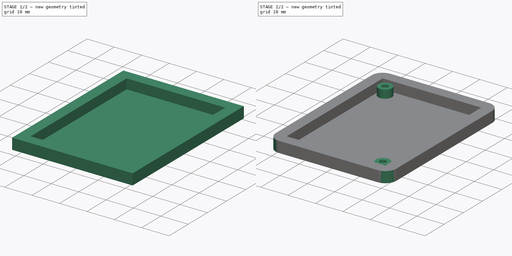
[diagram: build sequence overview — one tinted view per stage of 2, left to right]
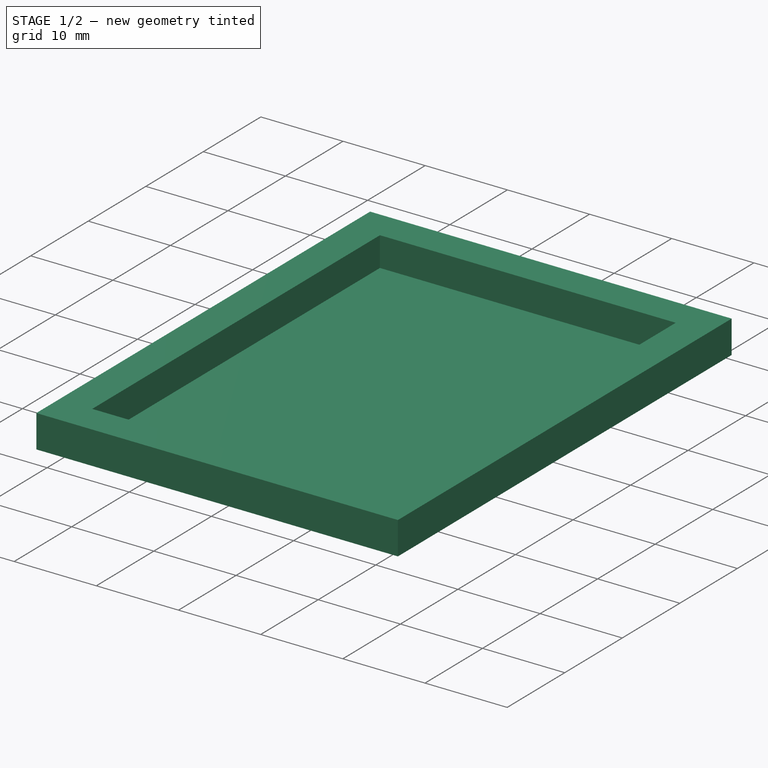
[diagram: stage 1 of 2 — iso view after this stage's code; geometry added in this stage tinted green]
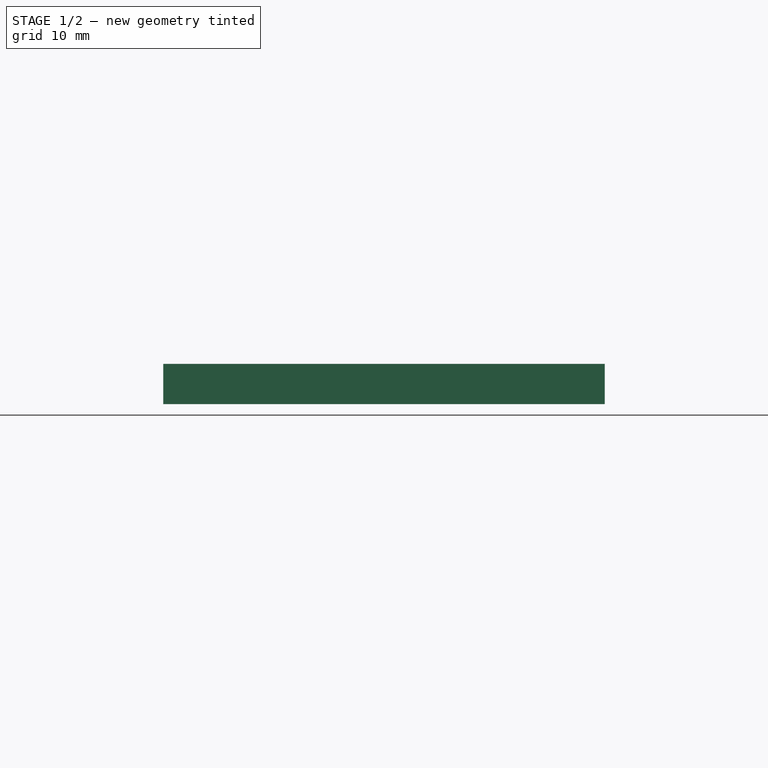
[diagram: stage 1 of 2 — front view after this stage's code; geometry added in this stage tinted green]
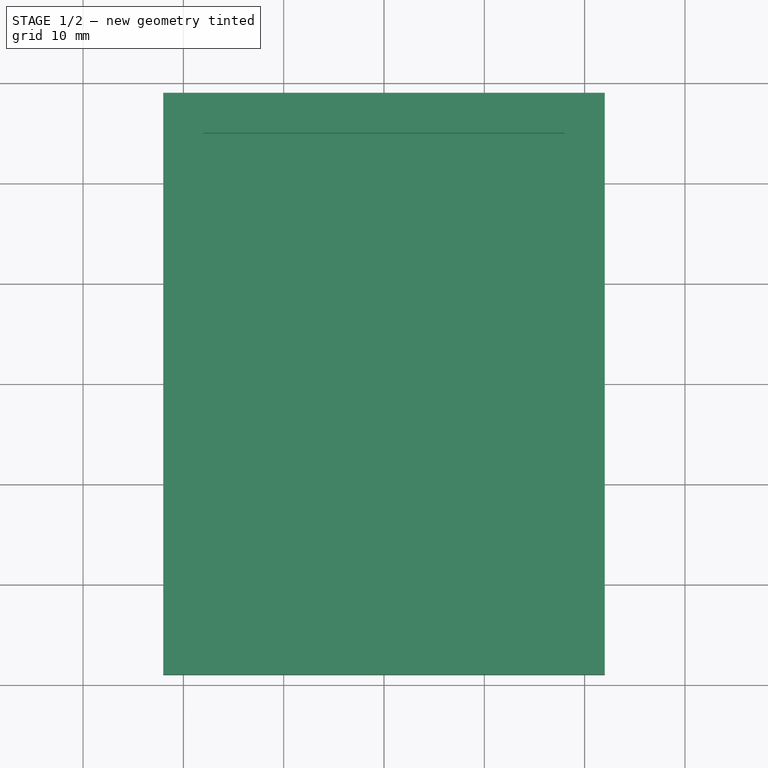
[diagram: stage 1 of 2 — top view after this stage's code; geometry added in this stage tinted green]
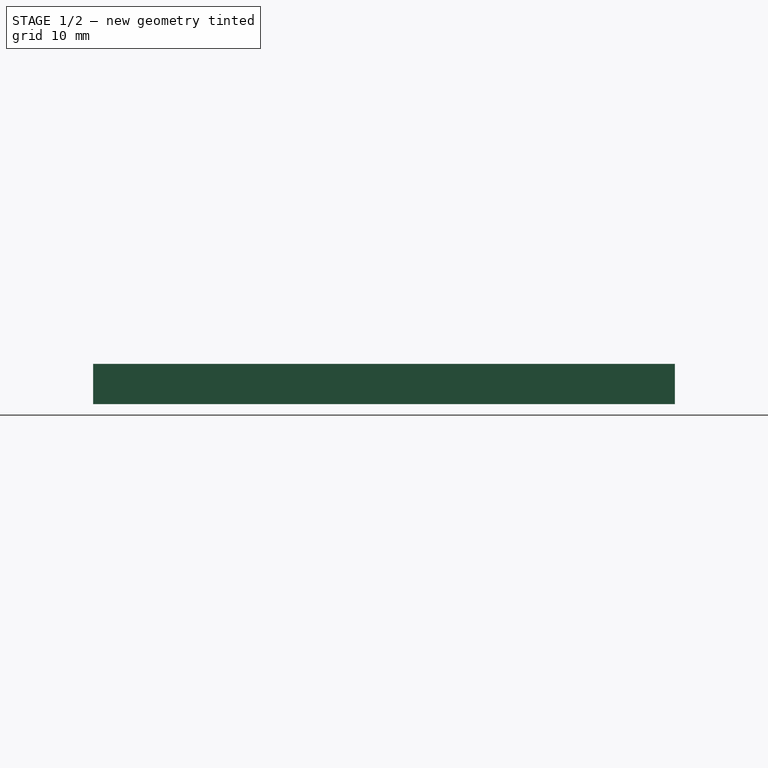
[diagram: stage 1 of 2 — right view after this stage's code; geometry added in this stage tinted green]
FCSTD DOCUMENT  (FreeCAD 0.19R24291 (Git))
Label: Base_Recepteur
License: All rights reserved
LicenseURL: http://en.wikipedia.org/wiki/All_rights_reserved
objects: Sketcher::SketchObject×3, PartDesign::Pad×2, PartDesign::Pocket×1, PartDesign::Fillet×1, PartDesign::Body×1
note: 12 computed .brp shape members not serialized (recipe doc carries the construction recipe); baked Part::Feature solids carry a one-line shape summary decoded from their .brp

FEATURE [Sketcher::SketchObject] Sketch
  FullyConstrained = true
  MapMode = 5
  Support = -> [XY_Plane]
  sketch-geometry (6):
    g0: LineSegment StartX=-22 StartY=-29 StartZ=0 EndX=22 EndY=-29 EndZ=0
    g1: LineSegment StartX=22 StartY=-29 StartZ=0 EndX=22 EndY=29 EndZ=0
    g2: LineSegment StartX=22 StartY=29 StartZ=0 EndX=-22 EndY=29 EndZ=0
    g3: LineSegment StartX=-22 StartY=29 StartZ=0 EndX=-22 EndY=-29 EndZ=0
    g4: LineSegment StartX=-22 StartY=29 StartZ=0 EndX=22 EndY=-29 EndZ=0
    g5: LineSegment StartX=-22 StartY=-29 StartZ=0 EndX=22 EndY=29 EndZ=0
  constraints (16):
    c: Coincident(g0,g1)
    c: Coincident(g1,g2)
    c: Coincident(g2,g3)
    c: Coincident(g3,g0)
    c: Horizontal(g0)
    c: Horizontal(g2)
    c: Vertical(g1)
    c: Vertical(g3)
    c: DistanceY(g0,g2) = 58
    c: DistanceX(g0,g0) = 44
    c: Coincident(g4,g2)
    c: Coincident(g4,g0)
    c: Coincident(g5,g0)
    c: Coincident(g5,g1)
    c: PointOnObject(g-1,g5)
    c: PointOnObject(g-1,g4)
FEATURE [PartDesign::Pad] Pad  label="Base"
  Direction = (1,1,1)
  Length = 4
  Length2 = 100
  Profile = -> Sketch
  Type = 0
FEATURE [Sketcher::SketchObject] Sketch001
  FullyConstrained = true
  MapMode = 5
  Placement = pos=(0,0,4) rot=(0,0,1;0rad)
  Support = -> [Pad]
  sketch-geometry (6):
    g0: LineSegment StartX=-18 StartY=-25 StartZ=0 EndX=18 EndY=-25 EndZ=0
    g1: LineSegment StartX=18 StartY=-25 StartZ=0 EndX=18 EndY=25 EndZ=0
    g2: LineSegment StartX=18 StartY=25 StartZ=0 EndX=-18 EndY=25 EndZ=0
    g3: LineSegment StartX=-18 StartY=25 StartZ=0 EndX=-18 EndY=-25 EndZ=0
    g4: LineSegment StartX=-18 StartY=25 StartZ=0 EndX=18 EndY=-25 EndZ=0
    g5: LineSegment StartX=-18 StartY=-25 StartZ=0 EndX=18 EndY=25 EndZ=0
  constraints (16):
    c: Coincident(g0,g1)
    c: Coincident(g1,g2)
    c: Coincident(g2,g3)
    c: Coincident(g3,g0)
    c: Horizontal(g0)
    c: Horizontal(g2)
    c: Vertical(g1)
    c: Vertical(g3)
    c: Coincident(g4,g2)
    c: Coincident(g4,g0)
    c: Coincident(g5,g0)
    c: Coincident(g5,g1)
    c: PointOnObject(g-1,g5)
    c: PointOnObject(g-1,g4)
    c: DistanceY(g0,g1) = 50
    c: DistanceX(g2,g1) = 36
FEATURE [PartDesign::Pocket] Pocket  label="Renfoncement"
  BaseFeature = -> Pad
  Length = 3.6
  Length2 = 100
  Profile = -> Sketch001
  Type = 0
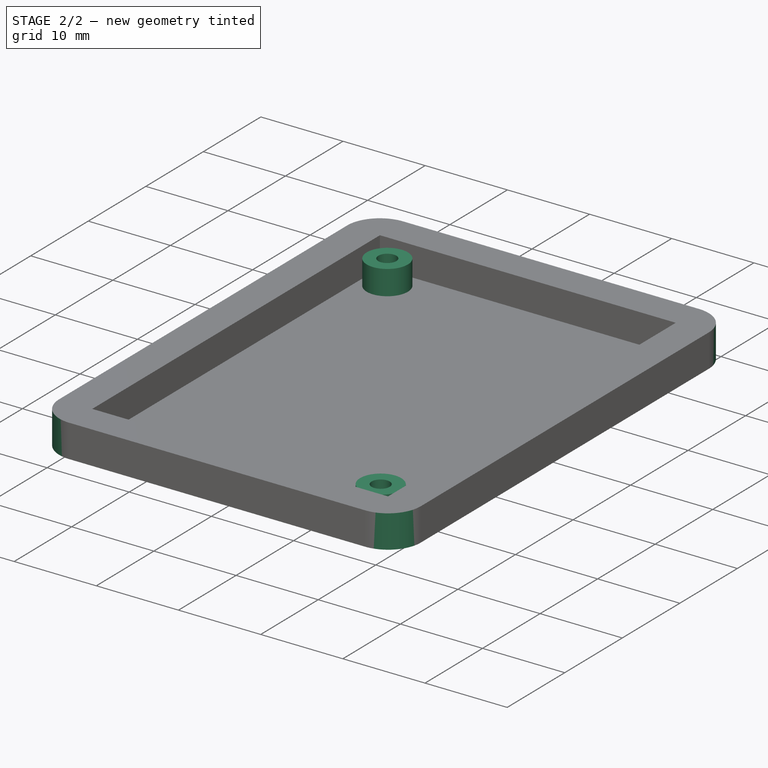
[diagram: stage 2 of 2 — iso view after this stage's code; geometry added in this stage tinted green]
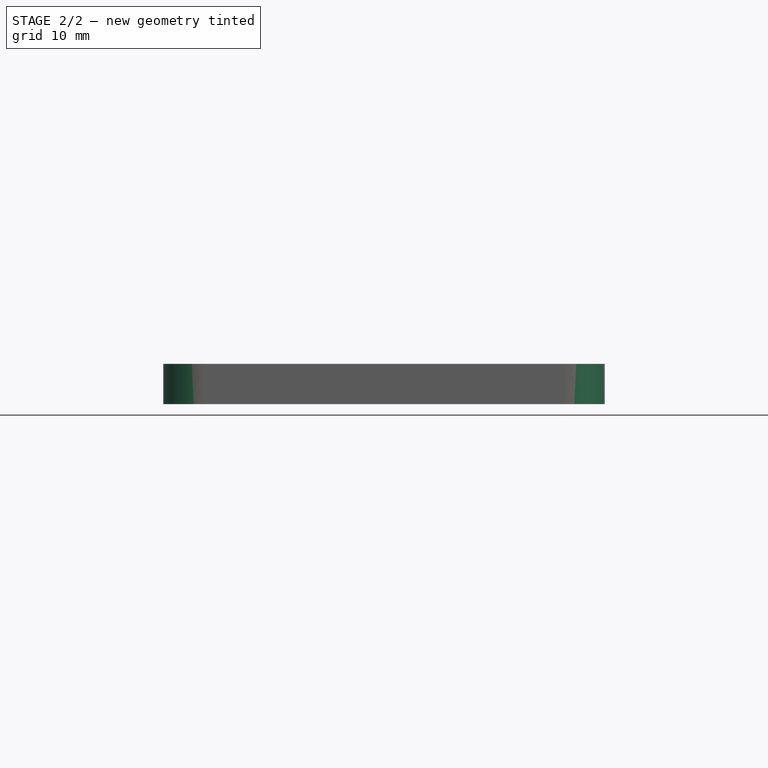
[diagram: stage 2 of 2 — front view after this stage's code; geometry added in this stage tinted green]
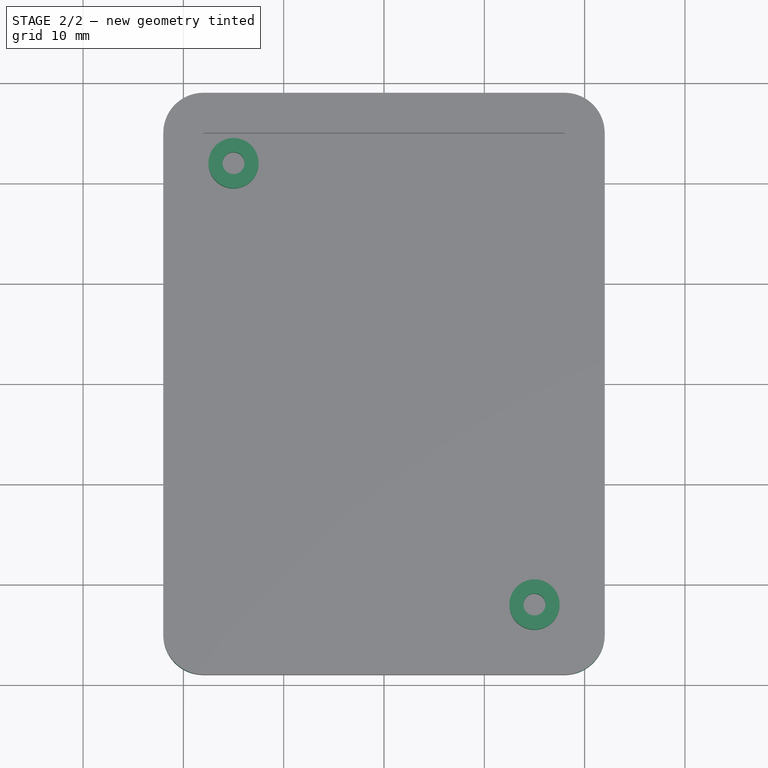
[diagram: stage 2 of 2 — top view after this stage's code; geometry added in this stage tinted green]
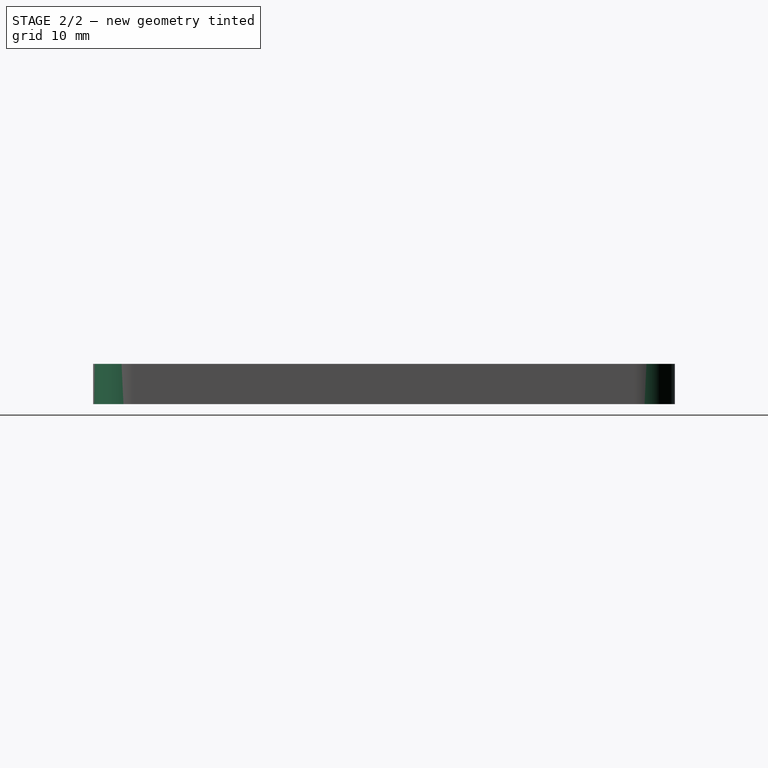
[diagram: stage 2 of 2 — right view after this stage's code; geometry added in this stage tinted green]
FEATURE [Sketcher::SketchObject] Sketch002
  FullyConstrained = true
  MapMode = 5
  Placement = pos=(0,0,0.4) rot=(0,0,1;0rad)
  Support = -> [Pocket]
  sketch-geometry (5):
    g0: Circle CenterX=-15 CenterY=22 CenterZ=0 NormalX=0 NormalY=0 NormalZ=1 AngleXU=0 Radius=1.1
    g1: Circle CenterX=15 CenterY=-22 CenterZ=0 NormalX=0 NormalY=0 NormalZ=1 AngleXU=0 Radius=1.1
    g2: LineSegment StartX=-15 StartY=22 StartZ=0 EndX=15 EndY=-22 EndZ=0
    g3: Circle CenterX=-15 CenterY=22 CenterZ=0 NormalX=0 NormalY=0 NormalZ=1 AngleXU=0 Radius=2.5
    g4: Circle CenterX=15 CenterY=-22 CenterZ=0 NormalX=0 NormalY=0 NormalZ=1 AngleXU=0 Radius=2.5
  constraints (11):
    c: DistanceX(g0,g1) = 30
    c: DistanceY(g1,g0) = 44
    c: Coincident(g2,g0)
    c: Coincident(g2,g1)
    c: Radius(g0) = 1.1
    c: Equal(g0,g1)
    c: Coincident(g3,g0)
    c: Radius(g3) = 2.5
    c: Coincident(g4,g1)
    c: Equal(g3,g4)
    c: Symmetric(g1,g0,g-1)
FEATURE [PartDesign::Pad] Pad001  label="Vis"
  BaseFeature = -> Pocket
  Direction = (1,1,1)
  Length = 3
  Length2 = 100
  Profile = -> Sketch002
  Type = 0
FEATURE [PartDesign::Fillet] Fillet  label="Coins"
  Base = -> Pad001 [Edge1,Edge2,Edge8,Edge5]
  BaseFeature = -> Pad001
  Radius = 4
  SupportTransform = false
FEATURE [PartDesign::Body] Body
  Group = -> [Sketch,Pad,Sketch001,Pocket,Sketch002,Pad001,Fillet]
  Origin = -> Origin
  Tip = -> Fillet
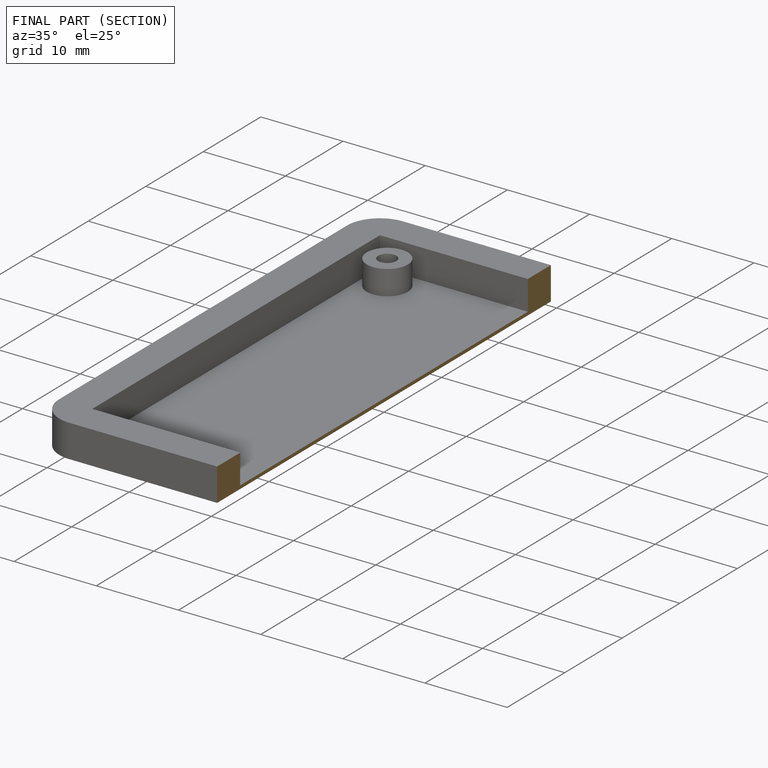
[diagram: finished part — half-section view (interior)]
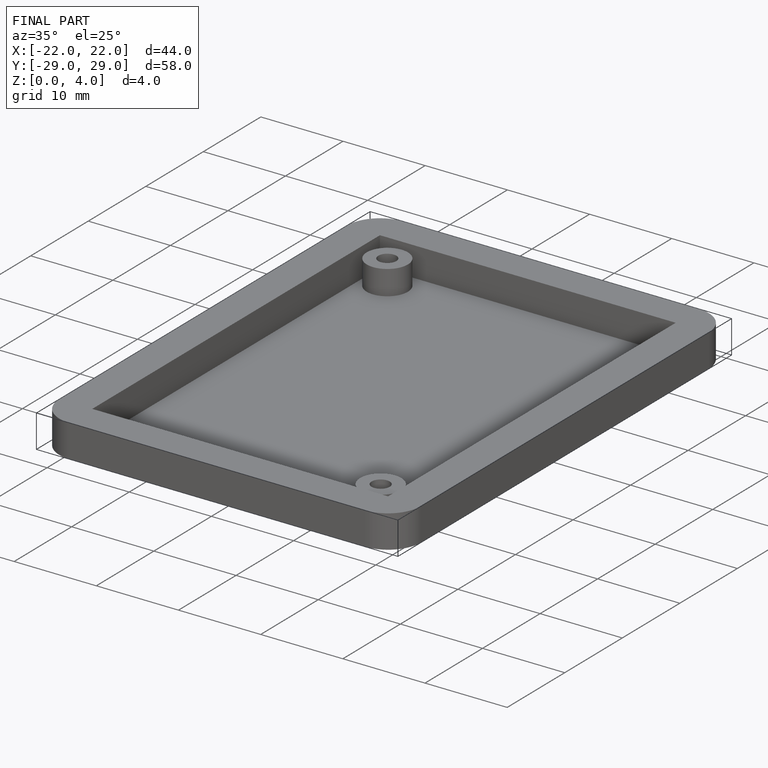
[diagram: finished part — iso view with bounding-box wireframe]
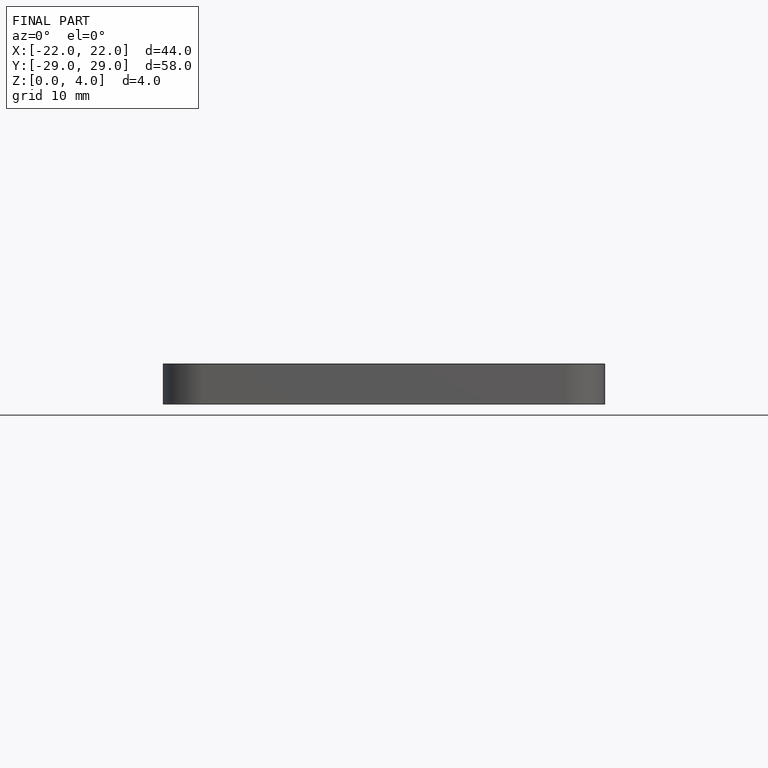
[diagram: finished part — front view with bounding-box wireframe]
